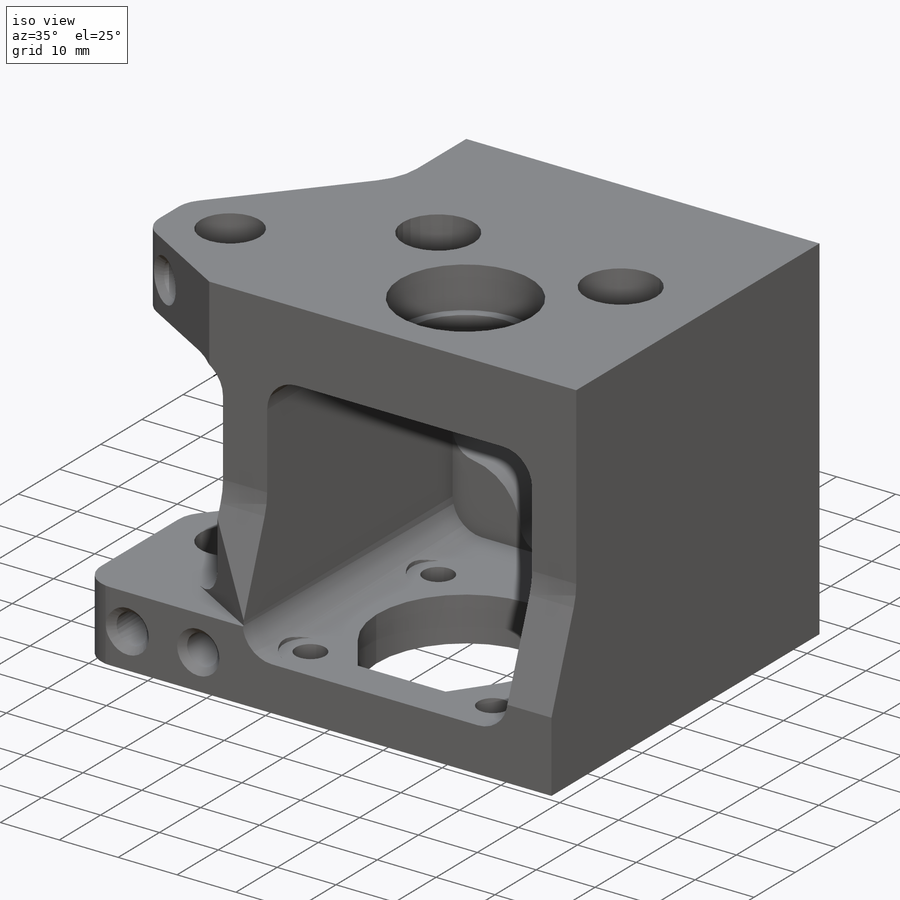
[diagram: iso view]
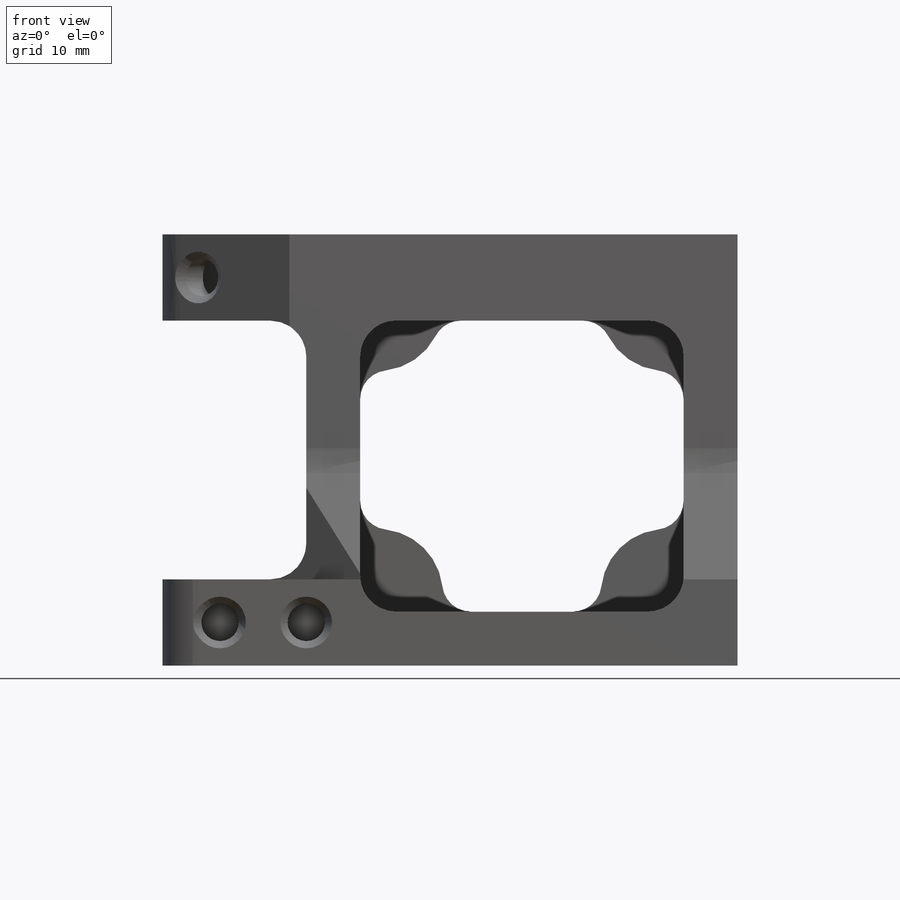
[diagram: front view]
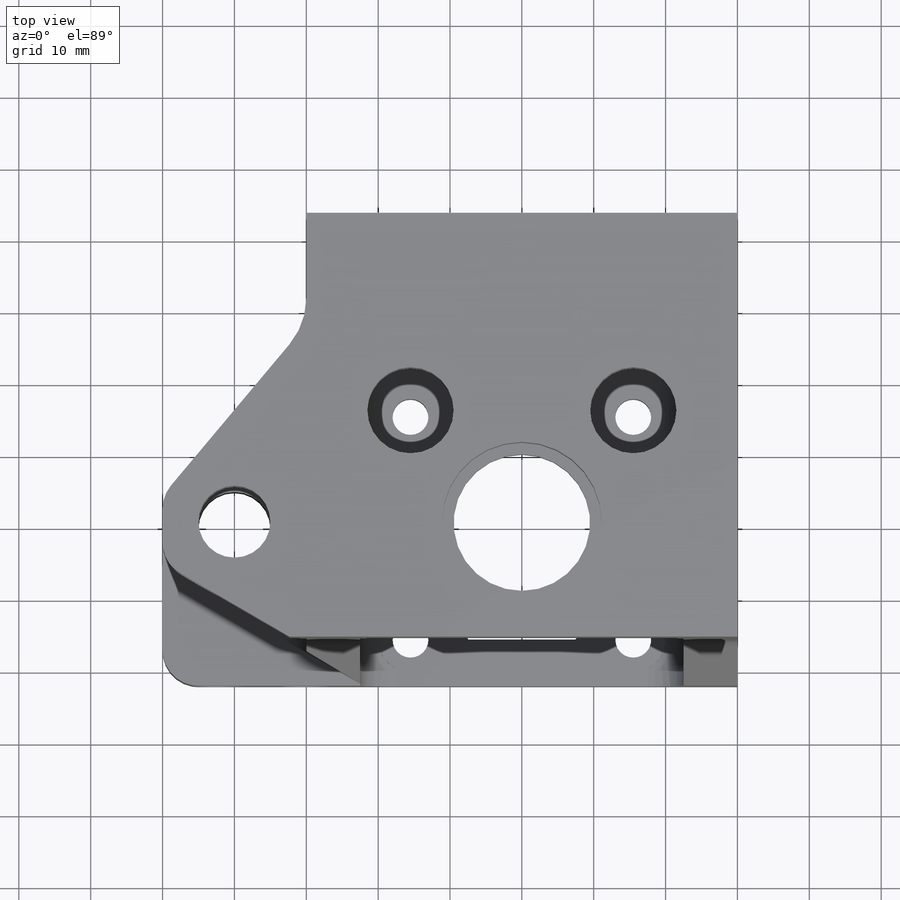
[diagram: top view]
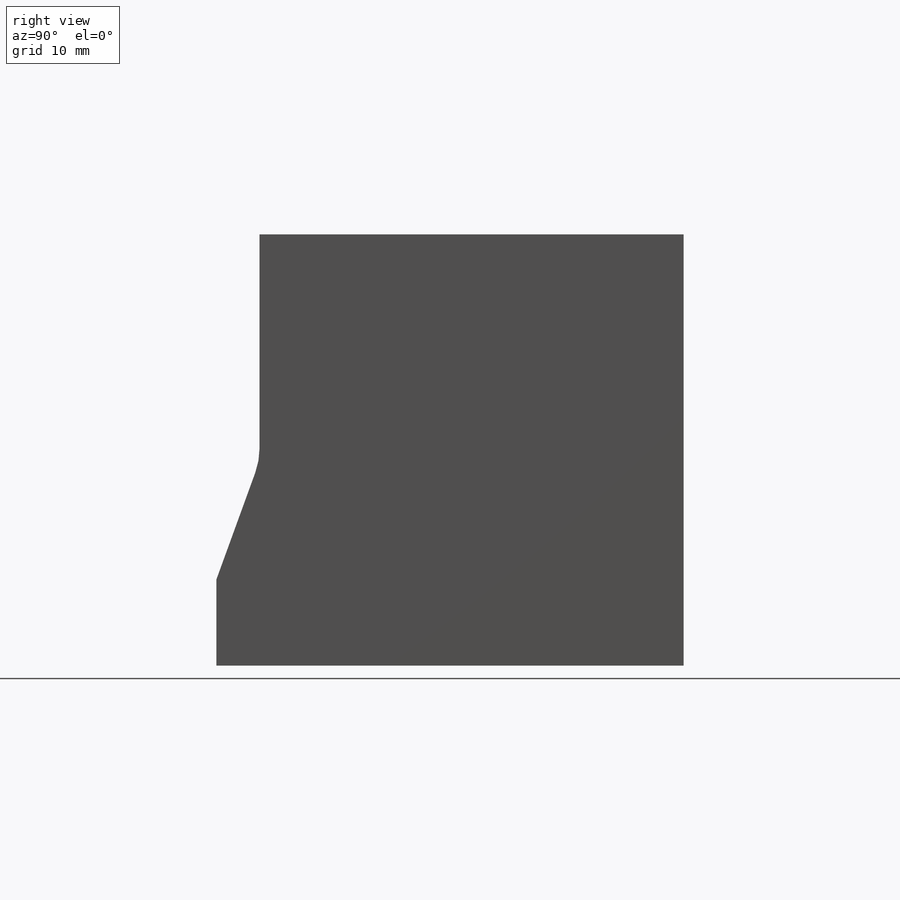
[diagram: right view]
SOLIDWORKS PART (.sldprt)
format: sldprt  version: not decoded by parser v0  size: 584,192 bytes
history: native  units: mm
features: sketch x14, cut_extrude x12, extrude x2, fillet x2, chamfer x2, material x1 (+11 scaffold rows collapsed)
feature tree (44):
  scaffold x11  (default folders/planes/origin — collapsed)
  material  "Material <not specified>"
  sketch  "Sketch1"  dims[c1.D3=19.0mm c1.D4=10.0mm c1.D13=15.0mm c1.D1=43.0mm c1.D2=40.0mm c1.D5=30.0mm c1.D6=22.0mm c1.D7=10.0mm c1.D8=22.0mm c1.D9=10.0mm c1.D10=10.0mm c1.D11=20.0mm c1.D12=~10.566038mm c2.D12=40.0deg]
  extrude  "Boss-Extrude1"  Depth=60mm
  sketch  "Sketch2"  dims[D1=22.2mm]
  cut_extrude  "Cut-Extrude1"  Depth=7mm
  sketch  "Sketch3"  dims[D6=5.0mm D1=12.0mm D2=7.5mm D3=7.5mm D4=7.5mm D5=22.5mm D7=12.0mm]
  cut_extrude  "Cut-Extrude2"  Depth=14mm
  sketch  "Sketch4"  dims[c1.D1=30.0mm c1.D4=5.0mm c1.D2=31.0mm c1.D3=31.0mm c1.D5=15.5mm c1.D6=~7.513254mm c2.D6=35.0deg c2.D7=~9.251786mm c3.D7=35.0deg]
  cut_extrude  "Cut-Extrude3"  Depth=10mm
  sketch  "Sketch5"  dims[D1=5.2mm]
  cut_extrude  "Cut-Extrude4"  Depth=10mm
  sketch  "Sketch6"  dims[D1=9.0mm]
  cut_extrude  "Cut-Extrude5"  Depth=10mm
  sketch  "Sketch7"  dims[D1=12.0mm]
  cut_extrude  "Cut-Extrude6"  Depth=20mm
  fillet  "Fillet2"  Radius=5mm
  sketch  "Sketch8"  dims[D5=8.0mm D1=10.0mm D2=10.0mm D3=10.0mm D4=10.0mm]
  cut_extrude  "Cut-Extrude7"  Depth=13mm
  sketch  "Sketch9"  dims[D1=18.0mm D2=4.0mm]
  cut_extrude  "Cut-Extrude8"  [1 undecoded]
  fillet  "Fillet3"  Radius=10mm
  sketch  "Sketch12"  dims[D1=5.0mm]
  extrude  "Boss-Extrude3"  [1 undecoded]
  sketch  "Sketch14"
  cut_extrude  "Cut-Extrude9"  Depth=1mm
  sketch  "Sketch16"  dims[D1=5.2mm D2=8.0mm D3=12.0mm]
  cut_extrude  "Cut-Extrude10"  Depth=8mm
  chamfer  "Chamfer1"  Distance=1mm Angle=45deg
  sketch  "Sketch17"  dims[D1=3.0mm D2=7.5mm D3=9.5mm D4=8.0mm]
  cut_extrude  "Cut-Extrude11"  Depth=5mm
  chamfer  "Chamfer2"  Distance=1mm Angle=45deg
  sketch  "Sketch18"  dims[c1.D3=10.0mm c1.D1=6.0mm c1.D2=~20.083757mm c2.D2=20.0deg]
  cut_extrude  "Cut-Extrude12"  Depth=10mm
decode coverage: 29 of 32 modeling features carry decoded parameters
note: ~ marks probable driven/reference dimensions
note: 2 parameter values undecoded
note: suppression state not decoded; provenance and decode notes live in map.json
